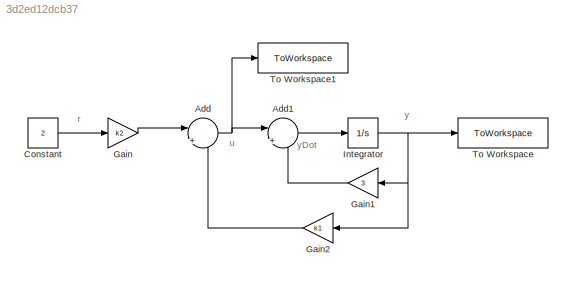
MODEL slx_3d2ed12dcb37
KIND model
CONFIG AbsTol = auto
CONFIG EnableMultiTasking = off
CONFIG FixedStep = auto
CONFIG MaxStep = auto
CONFIG MinStep = auto
CONFIG RelTol = 1e-3
CONFIG SampleTimeConstraint = Unconstrained
CONFIG SolverName = VariableStepAuto
CONFIG StartTime = 0.0
CONFIG StopTime = 10.0
BLOCK [Sum] Add
  Inputs = ||+|-
  Ports = [2, 1]
BLOCK [Sum] Add1
  Inputs = ||+|+
  Ports = [2, 1]
BLOCK [Constant] Constant
  Value = 2
BLOCK [Gain] Gain
  Gain = k2
BLOCK [Gain] Gain1
  Gain = 3
  NameLocation = top
BLOCK [Gain] Gain2
  Gain = k1
  NameLocation = top
BLOCK [Integrator] Integrator
  InitialCondition = -1
  Ports = [1, 1]
BLOCK [ToWorkspace] To Workspace
  FixptAsFi = on
  MaxDataPoints = inf
  Ports = [1]
  SampleTime = -1
  SaveFormat = Timeseries
  VariableName = y
BLOCK [ToWorkspace] To Workspace1
  FixptAsFi = on
  MaxDataPoints = inf
  Ports = [1]
  SampleTime = -1
  SaveFormat = Timeseries
  VariableName = u
ANNOTATION (root): r
ANNOTATION (root): u
ANNOTATION (root): y
ANNOTATION (root): yDot
LINE Add1:1 -> Integrator:1
NET Add:1 -> Add1:1, To Workspace1:1
LINE Constant:1 -> Gain:1
LINE Gain1:1 -> Add1:2
LINE Gain2:1 -> Add:2
LINE Gain:1 -> Add:1
NET Integrator:1 -> Gain1:1, Gain2:1, To Workspace:1
note: NET lines group one-source signal fan-out (src -> all destinations, sorted); 1:1 wires keep LINE
